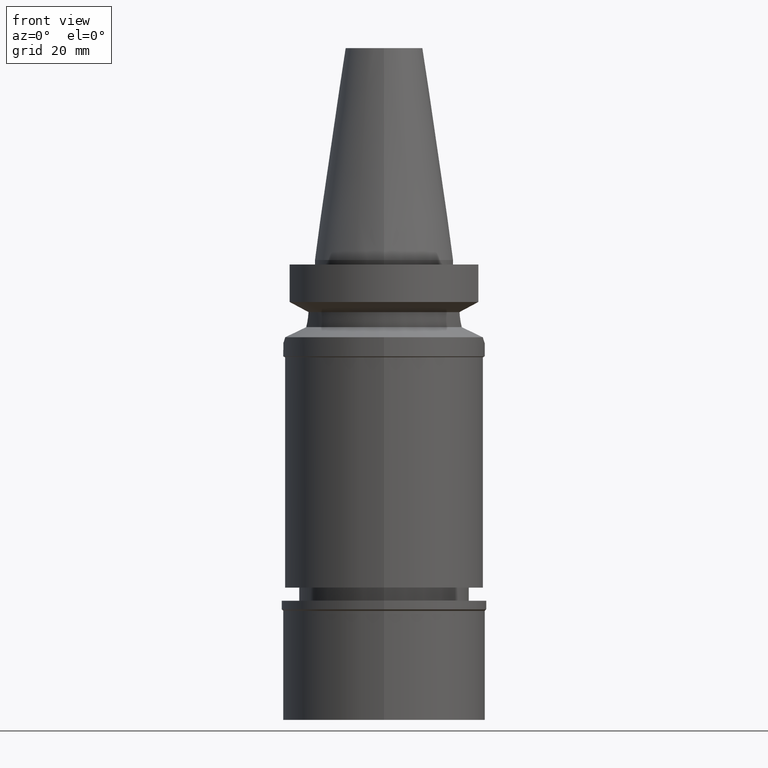
[diagram: clean part render]
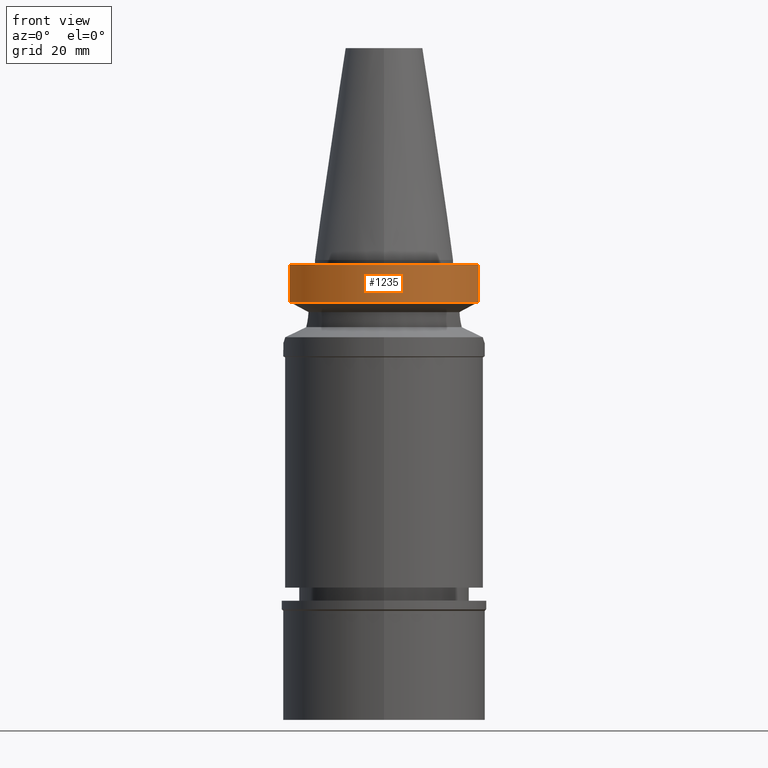
[diagram: same view with one face highlighted and labeled with its STEP entity id]
A machine part, front view. The second image highlights one B-rep face of the part: STEP entity #1235.
In plain terms, the highlighted cylindrical surface (partial cylindrical patch) has radius 23 mm, axis along (0, 0, -1).
Its self-contained STEP definition (entity closure, byte-faithful):
#17 = ORIENTED_EDGE ( 'NONE', *, *, #1747, .F. ) ;
#147 = DIRECTION ( 'NONE',  ( 0.0000000000000000000, 0.0000000000000000000, 1.000000000000000000 ) ) ;
#206 = VERTEX_POINT ( 'NONE', #1022 ) ;
#255 = CYLINDRICAL_SURFACE ( 'NONE', #321, 23.00000000000000000 ) ;
#321 = AXIS2_PLACEMENT_3D ( 'NONE', #1163, #2554, #2799 ) ;
#336 = AXIS2_PLACEMENT_3D ( 'NONE', #2637, #1666, #554 ) ;
#362 = VERTEX_POINT ( 'NONE', #2176 ) ;
#377 = EDGE_LOOP ( 'NONE', ( #2517, #2910, #17, #1603 ) ) ;
#504 = EDGE_CURVE ( 'NONE', #697, #751, #2330, .T. ) ;
#554 = DIRECTION ( 'NONE',  ( 0.0000000000000000000, -1.000000000000000000, 0.0000000000000000000 ) ) ;
#569 = CIRCLE ( 'NONE', #336, 23.00000000000000000 ) ;
#634 = DIRECTION ( 'NONE',  ( 0.0000000000000000000, -1.000000000000000000, 0.0000000000000000000 ) ) ;
#697 = VERTEX_POINT ( 'NONE', #1707 ) ;
#703 = AXIS2_PLACEMENT_3D ( 'NONE', #2033, #147, #634 ) ;
#735 = CARTESIAN_POINT ( 'NONE',  ( 21.54524309446999908, -8.050000000000000711, -1.000000000000000000 ) ) ;
#751 = VERTEX_POINT ( 'NONE', #1888 ) ;
#803 = VECTOR ( 'NONE', #2043, 1000.000000000000114 ) ;
#967 = VECTOR ( 'NONE', #2703, 1000.000000000000114 ) ;
#1022 = CARTESIAN_POINT ( 'NONE',  ( 21.54524309446999908, -8.050000000002000888, -9.567208369710998639 ) ) ;
#1163 = CARTESIAN_POINT ( 'NONE',  ( 0.0000000000000000000, 1.904570702033999722E-14, 55.52000000000000313 ) ) ;
#1235 = ADVANCED_FACE ( 'NONE', ( #1567 ), #255, .T. ) ;
#1567 = FACE_OUTER_BOUND ( 'NONE', #377, .T. ) ;
#1603 = ORIENTED_EDGE ( 'NONE', *, *, #2967, .T. ) ;
#1666 = DIRECTION ( 'NONE',  ( 0.0000000000000000000, 0.0000000000000000000, -1.000000000000000000 ) ) ;
#1707 = CARTESIAN_POINT ( 'NONE',  ( -21.54524325238000060, -8.049999577366000025, -9.567211146628999074 ) ) ;
#1747 = EDGE_CURVE ( 'NONE', #362, #206, #2326, .T. ) ;
#1756 = CARTESIAN_POINT ( 'NONE',  ( -21.54524325238000060, -8.049999577366000025, -9.567211146628999074 ) ) ;
#1888 = CARTESIAN_POINT ( 'NONE',  ( -21.54524309446999908, -8.050000000000000711, -1.000000000000000000 ) ) ;
#1954 = CIRCLE ( 'NONE', #703, 23.00000000000000000 ) ;
#2033 = CARTESIAN_POINT ( 'NONE',  ( 0.0000000000000000000, 1.093341284896999988E-14, -9.567208369710998639 ) ) ;
#2043 = DIRECTION ( 'NONE',  ( -9.134800703793688918E-08, -2.444862507563914651E-07, -0.9999999999999659162 ) ) ;
#2068 = EDGE_CURVE ( 'NONE', #697, #206, #1954, .T. ) ;
#2176 = CARTESIAN_POINT ( 'NONE',  ( 21.54524309446999908, -8.050000000000000711, -1.000000000000000000 ) ) ;
#2326 = LINE ( 'NONE', #735, #803 ) ;
#2330 = LINE ( 'NONE', #1756, #967 ) ;
#2517 = ORIENTED_EDGE ( 'NONE', *, *, #504, .F. ) ;
#2554 = DIRECTION ( 'NONE',  ( 0.0000000000000000000, 0.0000000000000000000, -1.000000000000000000 ) ) ;
#2637 = CARTESIAN_POINT ( 'NONE',  ( 0.0000000000000000000, 1.904570702033999722E-14, -1.000000000000000000 ) ) ;
#2703 = DIRECTION ( 'NONE',  ( 1.843191671230997693E-08, -4.933165888406983159E-08, 0.9999999999999985567 ) ) ;
#2799 = DIRECTION ( 'NONE',  ( 0.0000000000000000000, -1.000000000000000000, 0.0000000000000000000 ) ) ;
#2910 = ORIENTED_EDGE ( 'NONE', *, *, #2068, .T. ) ;
#2967 = EDGE_CURVE ( 'NONE', #362, #751, #569, .T. ) ;